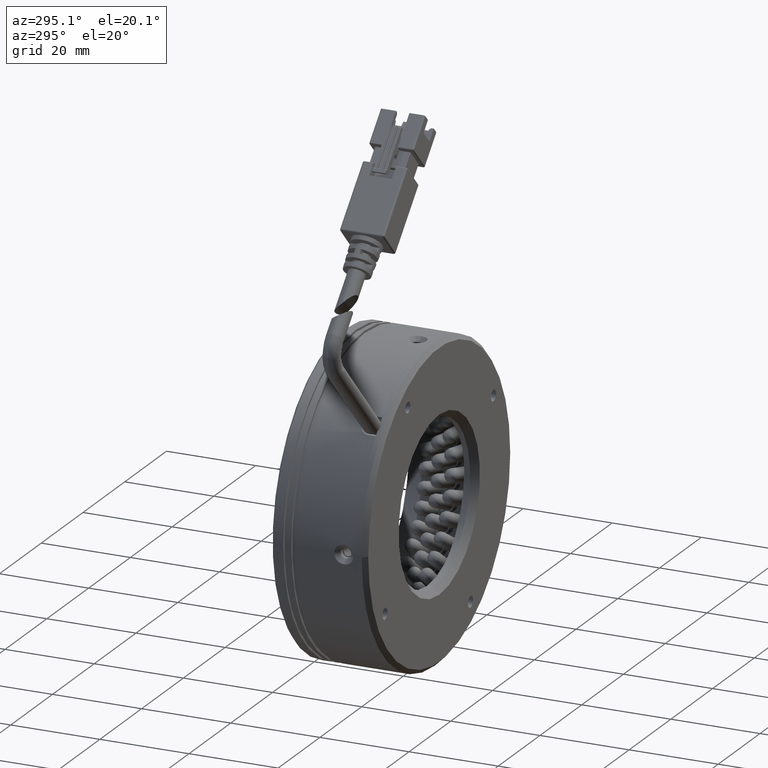
[diagram: clean part render]
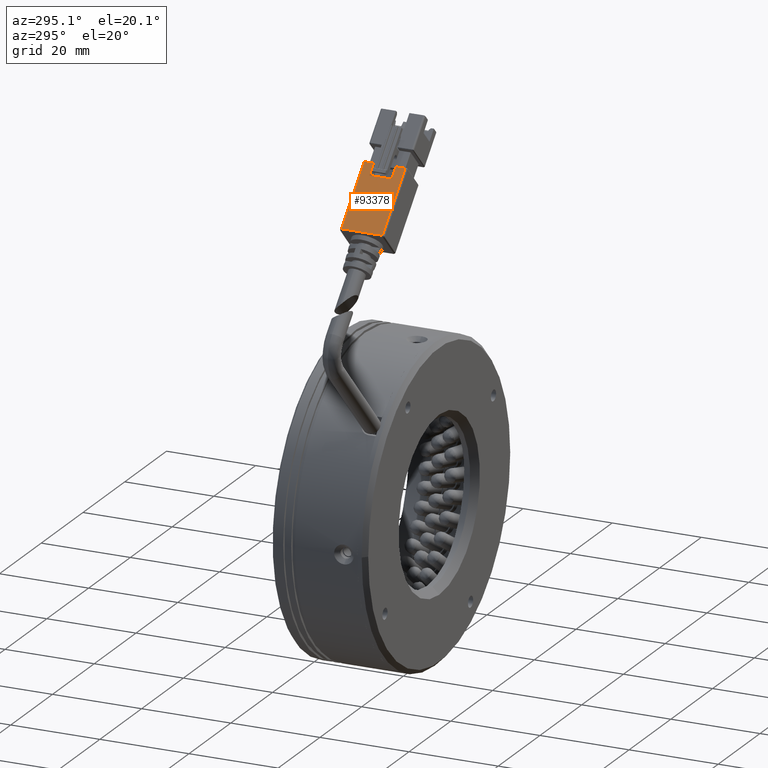
[diagram: same view with one face highlighted and labeled with its STEP entity id]
A machine part, auxiliary view. The second image highlights one B-rep face of the part: STEP entity #93378.
In plain terms, the highlighted planar face has unit normal (0.7071, 0, -0.7071).
Its self-contained STEP definition (entity closure, byte-faithful):
#414 = VERTEX_POINT ( 'NONE', #17797 ) ;
#452 = VERTEX_POINT ( 'NONE', #26624 ) ;
#2250 = CARTESIAN_POINT ( 'NONE',  ( -55.60853987123460500, -27.78693679055955500, 66.09353400793835900 ) ) ;
#5534 = EDGE_LOOP ( 'NONE', ( #48216, #17968, #24302, #77191, #64733, #15582, #88739, #79909 ) ) ;
#6334 = LINE ( 'NONE', #2250, #8827 ) ;
#8322 = CARTESIAN_POINT ( 'NONE',  ( -57.72986021479425000, -28.18693679055955300, 63.97221366437872100 ) ) ;
#8827 = VECTOR ( 'NONE', #66583, 999.9999999999998900 ) ;
#12524 = DIRECTION ( 'NONE',  ( 2.348040842650153800E-016, -1.000000000000000000, 1.052017170264382000E-016 ) ) ;
#15582 = ORIENTED_EDGE ( 'NONE', *, *, #77656, .F. ) ;
#15713 = EDGE_CURVE ( 'NONE', #82846, #414, #56551, .T. ) ;
#17797 = CARTESIAN_POINT ( 'NONE',  ( -55.74996122747190700, -25.68693679055954600, 65.95211265170104300 ) ) ;
#17968 = ORIENTED_EDGE ( 'NONE', *, *, #15713, .F. ) ;
#19477 = EDGE_CURVE ( 'NONE', #67740, #33784, #6334, .T. ) ;
#21786 = DIRECTION ( 'NONE',  ( -0.7071067811865512400, -2.404204077359530700E-016, -0.7071067811865439100 ) ) ;
#24302 = ORIENTED_EDGE ( 'NONE', *, *, #67433, .F. ) ;
#24768 = CARTESIAN_POINT ( 'NONE',  ( -57.72986021479425000, -25.68693679055954600, 63.97221366437872100 ) ) ;
#26624 = CARTESIAN_POINT ( 'NONE',  ( -57.72986021479425700, -20.68693679055954600, 63.97221366437872100 ) ) ;
#28067 = EDGE_CURVE ( 'NONE', #45943, #71330, #34573, .T. ) ;
#28234 = CARTESIAN_POINT ( 'NONE',  ( -55.60853987123460500, -25.68693679055954600, 66.09353400793835900 ) ) ;
#30022 = LINE ( 'NONE', #66291, #72803 ) ;
#32494 = DIRECTION ( 'NONE',  ( 0.7071067811865439100, 9.164271273222593400E-017, -0.7071067811865512400 ) ) ;
#33784 = VERTEX_POINT ( 'NONE', #90789 ) ;
#34573 = LINE ( 'NONE', #68182, #74846 ) ;
#35893 = CARTESIAN_POINT ( 'NONE',  ( -55.74996122747191400, -18.58693679055955500, 65.95211265170104300 ) ) ;
#38321 = VECTOR ( 'NONE', #21786, 999.9999999999998900 ) ;
#41009 = VERTEX_POINT ( 'NONE', #54814 ) ;
#45943 = VERTEX_POINT ( 'NONE', #35893 ) ;
#46975 = VECTOR ( 'NONE', #86667, 1000.000000000000000 ) ;
#47823 = CARTESIAN_POINT ( 'NONE',  ( -55.74996122747191400, -20.68693679055954600, 65.95211265170104300 ) ) ;
#48216 = ORIENTED_EDGE ( 'NONE', *, *, #79842, .F. ) ;
#48391 = PLANE ( 'NONE',  #75186 ) ;
#54814 = CARTESIAN_POINT ( 'NONE',  ( -66.63940565774480300, -18.58693679055955900, 55.06266822142826800 ) ) ;
#56069 = LINE ( 'NONE', #8322, #77376 ) ;
#56551 = LINE ( 'NONE', #28234, #99266 ) ;
#56606 = EDGE_CURVE ( 'NONE', #71330, #452, #99949, .T. ) ;
#62098 = VECTOR ( 'NONE', #78242, 1000.000000000000000 ) ;
#64733 = ORIENTED_EDGE ( 'NONE', *, *, #28067, .F. ) ;
#66291 = CARTESIAN_POINT ( 'NONE',  ( -55.60853987123460500, -18.58693679055955500, 66.09353400793835900 ) ) ;
#66583 = DIRECTION ( 'NONE',  ( -0.7071067811865512400, -2.404204077359530700E-016, -0.7071067811865439100 ) ) ;
#67433 = EDGE_CURVE ( 'NONE', #452, #82846, #56069, .T. ) ;
#67740 = VERTEX_POINT ( 'NONE', #84613 ) ;
#68182 = CARTESIAN_POINT ( 'NONE',  ( -55.74996122747191400, -18.18693679055955300, 65.95211265170104300 ) ) ;
#68320 = LINE ( 'NONE', #86307, #46975 ) ;
#70664 = CARTESIAN_POINT ( 'NONE',  ( -55.60853987123460500, -20.68693679055954600, 66.09353400793835900 ) ) ;
#71330 = VERTEX_POINT ( 'NONE', #47823 ) ;
#72655 = DIRECTION ( 'NONE',  ( 2.348040842650153800E-016, -1.000000000000000000, 1.052017170264382000E-016 ) ) ;
#72803 = VECTOR ( 'NONE', #97938, 999.9999999999998900 ) ;
#74846 = VECTOR ( 'NONE', #12524, 1000.000000000000000 ) ;
#75186 = AXIS2_PLACEMENT_3D ( 'NONE', #80692, #32494, #88802 ) ;
#77191 = ORIENTED_EDGE ( 'NONE', *, *, #56606, .F. ) ;
#77376 = VECTOR ( 'NONE', #72655, 1000.000000000000000 ) ;
#77656 = EDGE_CURVE ( 'NONE', #41009, #45943, #30022, .T. ) ;
#78242 = DIRECTION ( 'NONE',  ( 2.348040842650153800E-016, -1.000000000000000000, 1.052017170264382000E-016 ) ) ;
#79842 = EDGE_CURVE ( 'NONE', #414, #67740, #83491, .T. ) ;
#79909 = ORIENTED_EDGE ( 'NONE', *, *, #19477, .F. ) ;
#80692 = CARTESIAN_POINT ( 'NONE',  ( -55.60853987123460500, -28.18693679055955300, 66.09353400793835900 ) ) ;
#81985 = FACE_OUTER_BOUND ( 'NONE', #5534, .T. ) ;
#82846 = VERTEX_POINT ( 'NONE', #24768 ) ;
#83181 = EDGE_CURVE ( 'NONE', #33784, #41009, #68320, .T. ) ;
#83491 = LINE ( 'NONE', #94074, #62098 ) ;
#84231 = DIRECTION ( 'NONE',  ( 0.7071067811865512400, 2.404204077359530700E-016, 0.7071067811865439100 ) ) ;
#84613 = CARTESIAN_POINT ( 'NONE',  ( -55.74996122747190700, -27.78693679055955500, 65.95211265170104300 ) ) ;
#86307 = CARTESIAN_POINT ( 'NONE',  ( -66.63940565774480300, -28.18693679055955700, 55.06266822142826800 ) ) ;
#86667 = DIRECTION ( 'NONE',  ( -2.348040842650153800E-016, 1.000000000000000000, -1.052017170264382000E-016 ) ) ;
#88739 = ORIENTED_EDGE ( 'NONE', *, *, #83181, .F. ) ;
#88802 = DIRECTION ( 'NONE',  ( -2.348040842650153800E-016, 1.000000000000000000, -1.052017170264382000E-016 ) ) ;
#90789 = CARTESIAN_POINT ( 'NONE',  ( -66.63940565774480300, -27.78693679055955800, 55.06266822142826800 ) ) ;
#93378 = ADVANCED_FACE ( 'NONE', ( #81985 ), #48391, .F. ) ;
#94074 = CARTESIAN_POINT ( 'NONE',  ( -55.74996122747191400, -18.18693679055955300, 65.95211265170104300 ) ) ;
#97938 = DIRECTION ( 'NONE',  ( 0.7071067811865512400, 2.404204077359530700E-016, 0.7071067811865439100 ) ) ;
#99266 = VECTOR ( 'NONE', #84231, 999.9999999999998900 ) ;
#99949 = LINE ( 'NONE', #70664, #38321 ) ;